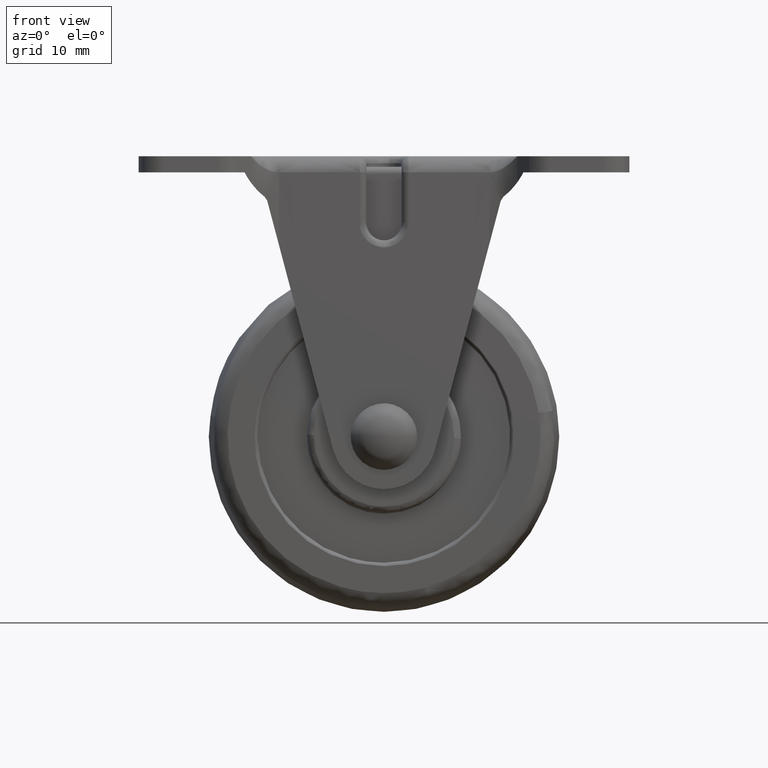
[diagram: clean part render]
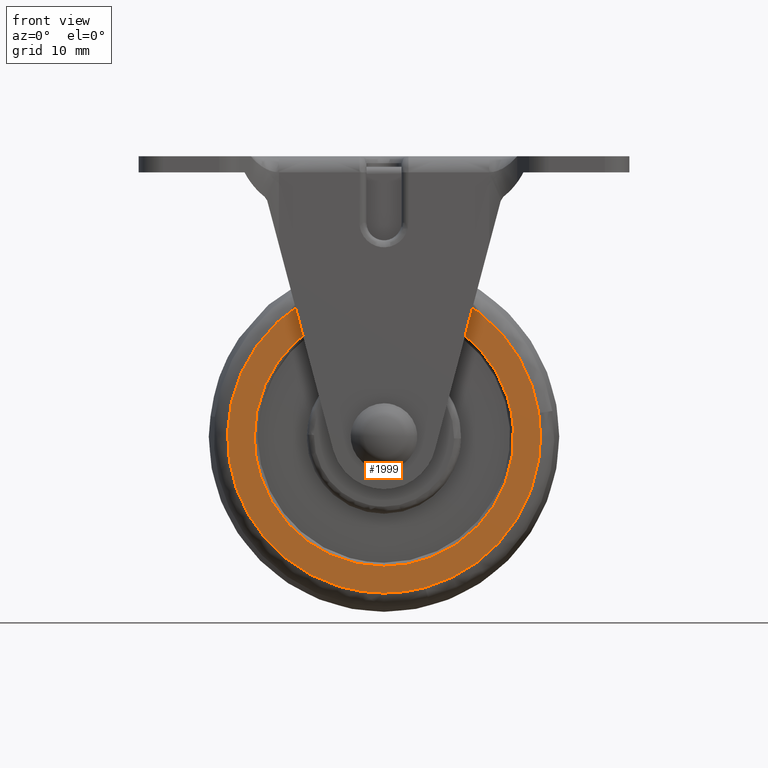
[diagram: same view with one face highlighted and labeled with its STEP entity id]
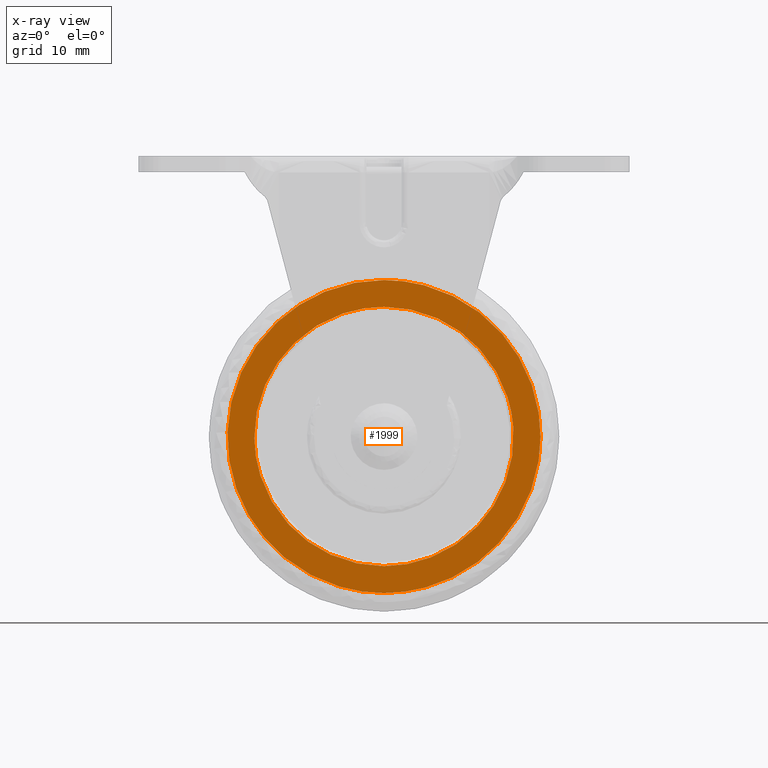
[diagram: x-ray of the same camera — body ghosted, the highlighted face saturated]
A machine part, front view. The second image highlights one B-rep face of the part: STEP entity #1999.
The next image is the same camera in x-ray: the body ghosted, the highlighted face saturated — about 0% of this face is hidden behind the body in this view.
In plain terms, the highlighted face is a freeform B-spline surface patch.
Its self-contained STEP definition (entity closure, byte-faithful):
#695=CARTESIAN_POINT('',(18.454964962405828,-10.000000000000121,1.290065153966254));
#696=VERTEX_POINT('',#695);
#697=CARTESIAN_POINT('',(0.0,-10.000000000000121,-18.500000000000000));
#698=VERTEX_POINT('',#697);
#699=CARTESIAN_POINT('',(18.454964962405832,-10.000000000000119,1.290065153966254));
#700=CARTESIAN_POINT('',(18.500000000000004,-10.000000000000121,0.645818643757248));
#701=CARTESIAN_POINT('',(18.500000000000000,-10.000000000000121,1.211545E-015));
#702=CARTESIAN_POINT('',(18.500000000000000,-10.000000000000121,-18.500000000000000));
#703=CARTESIAN_POINT('',(0.0,-10.000000000000121,-18.500000000000000));
#711=(BOUNDED_CURVE()B_SPLINE_CURVE(2,(#699,#700,#701,#702,#703),.UNSPECIFIED.,.F.,.U.)B_SPLINE_CURVE_WITH_KNOTS((3,2,3),(0.237833686533740,0.250000000000000,0.500000000000000),.UNSPECIFIED.)CURVE()GEOMETRIC_REPRESENTATION_ITEM()RATIONAL_B_SPLINE_CURVE((0.972879876384118,0.985746277151095,1.0,0.707106781186548,1.0))REPRESENTATION_ITEM(''));
#712=EDGE_CURVE('',#696,#698,#711,.T.);
#761=CARTESIAN_POINT('',(-18.498539309967839,-10.000000000000121,-0.232471737924652));
#762=VERTEX_POINT('',#761);
#776=CARTESIAN_POINT('',(0.0,-10.000000000000121,-18.500000000000000));
#777=CARTESIAN_POINT('',(-18.268970702928563,-10.000000000000121,-18.500000000000000));
#778=CARTESIAN_POINT('',(-18.498539309967843,-10.000000000000121,-0.232471737924652));
#786=(BOUNDED_CURVE()B_SPLINE_CURVE(2,(#776,#777,#778),.UNSPECIFIED.,.F.,.U.)B_SPLINE_CURVE_WITH_KNOTS((3,3),(0.500000000000000,0.747784295918294),.UNSPECIFIED.)CURVE()GEOMETRIC_REPRESENTATION_ITEM()RATIONAL_B_SPLINE_CURVE((1.0,0.709702639988263,0.994854295636108))REPRESENTATION_ITEM(''));
#787=EDGE_CURVE('',#698,#762,#786,.T.);
#815=CARTESIAN_POINT('',(0.0,-10.000000000000121,18.500000000000000));
#816=VERTEX_POINT('',#815);
#817=CARTESIAN_POINT('',(0.0,-10.000000000000121,18.500000000000000));
#818=CARTESIAN_POINT('',(17.251931674292273,-10.000000000000121,18.500000000000000));
#819=CARTESIAN_POINT('',(18.454964962405828,-10.000000000000119,1.290065153966255));
#827=(BOUNDED_CURVE()B_SPLINE_CURVE(2,(#817,#818,#819),.UNSPECIFIED.,.F.,.U.)B_SPLINE_CURVE_WITH_KNOTS((3,3),(0.0,0.237833686533740),.UNSPECIFIED.)CURVE()GEOMETRIC_REPRESENTATION_ITEM()RATIONAL_B_SPLINE_CURVE((1.0,0.721360504035452,0.972879876384118))REPRESENTATION_ITEM(''));
#828=EDGE_CURVE('',#816,#696,#827,.T.);
#830=CARTESIAN_POINT('',(-18.498539309967835,-10.000000000000121,-0.232471737924652));
#831=CARTESIAN_POINT('',(-18.499999999999996,-10.000000000000121,-0.116240458030640));
#832=CARTESIAN_POINT('',(-18.500000000000000,-10.000000000000121,1.211545E-015));
#833=CARTESIAN_POINT('',(-18.500000000000000,-10.000000000000121,18.500000000000000));
#834=CARTESIAN_POINT('',(0.0,-10.000000000000121,18.500000000000000));
#842=(BOUNDED_CURVE()B_SPLINE_CURVE(2,(#830,#831,#832,#833,#834),.UNSPECIFIED.,.F.,.U.)B_SPLINE_CURVE_WITH_KNOTS((3,2,3),(0.747784295918293,0.750000000000000,1.0),.UNSPECIFIED.)CURVE()GEOMETRIC_REPRESENTATION_ITEM()RATIONAL_B_SPLINE_CURVE((0.994854295636106,0.997404141198283,1.0,0.707106781186548,1.0))REPRESENTATION_ITEM(''));
#843=EDGE_CURVE('',#762,#816,#842,.T.);
#1111=CARTESIAN_POINT('',(5.880799708995653,-10.000000000000121,-21.540296173588580));
#1112=VERTEX_POINT('',#1111);
#1113=CARTESIAN_POINT('',(22.075248894155049,-10.000000000000121,3.354333098354020));
#1114=VERTEX_POINT('',#1113);
#1115=CARTESIAN_POINT('',(5.880799708995653,-10.000000000000119,-21.540296173588573));
#1116=CARTESIAN_POINT('',(22.328639999999989,-10.000000000000119,-17.049807569016370));
#1117=CARTESIAN_POINT('',(22.328640000000000,-10.000000000000121,1.211545E-015));
#1118=CARTESIAN_POINT('',(22.328640000000004,-10.000000000000121,1.686737311928622));
#1119=CARTESIAN_POINT('',(22.075248894155052,-10.000000000000119,3.354333098354021));
#1127=(BOUNDED_CURVE()B_SPLINE_CURVE(2,(#1115,#1116,#1117,#1118,#1119),.UNSPECIFIED.,.F.,.U.)B_SPLINE_CURVE_WITH_KNOTS((3,2,3),(0.044901926752969,0.250000000000000,0.275897584623586),.UNSPECIFIED.)CURVE()GEOMETRIC_REPRESENTATION_ITEM()RATIONAL_B_SPLINE_CURVE((0.913685083898855,0.759712660616960,1.0,0.969659092320417,0.945604234434341))REPRESENTATION_ITEM(''));
#1128=EDGE_CURVE('',#1112,#1114,#1127,.T.);
#1213=CARTESIAN_POINT('',(0.0,-10.000000000000121,-22.328640000000000));
#1214=VERTEX_POINT('',#1213);
#1215=CARTESIAN_POINT('',(0.0,-10.000000000000121,-22.328640000000000));
#1216=CARTESIAN_POINT('',(2.993240116060336,-10.000000000000121,-22.328639999999996));
#1217=CARTESIAN_POINT('',(5.880799708995653,-10.000000000000119,-21.540296173588580));
#1225=(BOUNDED_CURVE()B_SPLINE_CURVE(2,(#1215,#1216,#1217),.UNSPECIFIED.,.F.,.U.)B_SPLINE_CURVE_WITH_KNOTS((3,3),(0.0,0.044901926752969),.UNSPECIFIED.)CURVE()GEOMETRIC_REPRESENTATION_ITEM()RATIONAL_B_SPLINE_CURVE((1.0,0.947394120569588,0.913685083898855))REPRESENTATION_ITEM(''));
#1226=EDGE_CURVE('',#1214,#1112,#1225,.T.);
#1228=CARTESIAN_POINT('',(0.0,-10.000000000000121,22.328640000000000));
#1229=VERTEX_POINT('',#1228);
#1230=CARTESIAN_POINT('',(0.0,-10.000000000000121,22.328640000000000));
#1231=CARTESIAN_POINT('',(-22.328639999999996,-10.000000000000121,22.328639999999996));
#1232=CARTESIAN_POINT('',(-22.328640000000000,-10.000000000000121,1.211545E-015));
#1233=CARTESIAN_POINT('',(-22.328639999999996,-10.000000000000121,-22.328639999999996));
#1234=CARTESIAN_POINT('',(0.0,-10.000000000000121,-22.328640000000000));
#1242=(BOUNDED_CURVE()B_SPLINE_CURVE(2,(#1230,#1231,#1232,#1233,#1234),.UNSPECIFIED.,.F.,.U.)B_SPLINE_CURVE_WITH_KNOTS((3,2,3),(0.500000000000000,0.750000000000000,1.0),.UNSPECIFIED.)CURVE()GEOMETRIC_REPRESENTATION_ITEM()RATIONAL_B_SPLINE_CURVE((1.0,0.707106781186547,1.0,0.707106781186547,1.0))REPRESENTATION_ITEM(''));
#1243=EDGE_CURVE('',#1229,#1214,#1242,.T.);
#1245=CARTESIAN_POINT('',(22.075248894155052,-10.000000000000119,3.354333098354021));
#1246=CARTESIAN_POINT('',(19.192103794598413,-10.000000000000121,22.328639999999993));
#1247=CARTESIAN_POINT('',(0.0,-10.000000000000121,22.328640000000000));
#1255=(BOUNDED_CURVE()B_SPLINE_CURVE(2,(#1245,#1246,#1247),.UNSPECIFIED.,.F.,.U.)B_SPLINE_CURVE_WITH_KNOTS((3,3),(0.275897584623586,0.500000000000000),.UNSPECIFIED.)CURVE()GEOMETRIC_REPRESENTATION_ITEM()RATIONAL_B_SPLINE_CURVE((0.945604234434341,0.737447688866131,1.0))REPRESENTATION_ITEM(''));
#1256=EDGE_CURVE('',#1114,#1229,#1255,.T.);
#1982=CARTESIAN_POINT('',(-24.559255448842599,-10.000000000000121,-24.559271049445531));
#1983=CARTESIAN_POINT('',(-24.559255448842599,-10.000000000000121,24.559272247247119));
#1984=CARTESIAN_POINT('',(24.558944322241150,-10.000000000000121,-24.559271049445531));
#1985=CARTESIAN_POINT('',(24.558944322241150,-10.000000000000121,24.559272247247119));
#1986=B_SPLINE_SURFACE_WITH_KNOTS('',1,1,((#1982,#1984),(#1983,#1985)),.UNSPECIFIED.,.F.,.F.,.U.,(2,2),(2,2),(0.0,49.118543296692643),(0.0,49.118199771083752),.UNSPECIFIED.);
#1987=ORIENTED_EDGE('',*,*,#1226,.T.);
#1988=ORIENTED_EDGE('',*,*,#1128,.T.);
#1989=ORIENTED_EDGE('',*,*,#1256,.T.);
#1990=ORIENTED_EDGE('',*,*,#1243,.T.);
#1991=EDGE_LOOP('',(#1987,#1988,#1989,#1990));
#1992=FACE_OUTER_BOUND('',#1991,.T.);
#1993=ORIENTED_EDGE('',*,*,#787,.T.);
#1994=ORIENTED_EDGE('',*,*,#843,.T.);
#1995=ORIENTED_EDGE('',*,*,#828,.T.);
#1996=ORIENTED_EDGE('',*,*,#712,.T.);
#1997=EDGE_LOOP('',(#1993,#1994,#1995,#1996));
#1998=FACE_BOUND('',#1997,.T.);
#1999=ADVANCED_FACE('',(#1992,#1998),#1986,.F.);